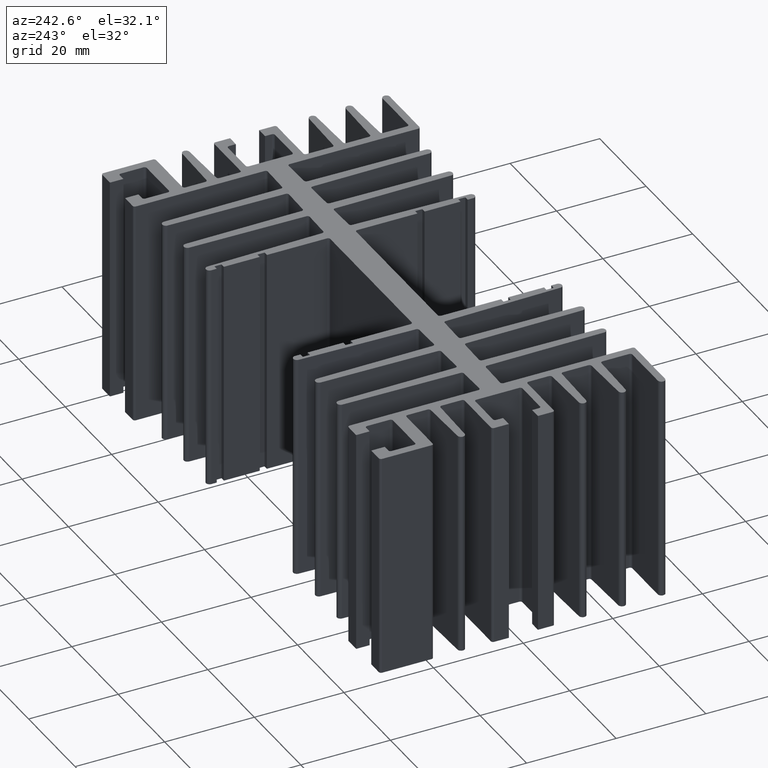
[diagram: clean part render]
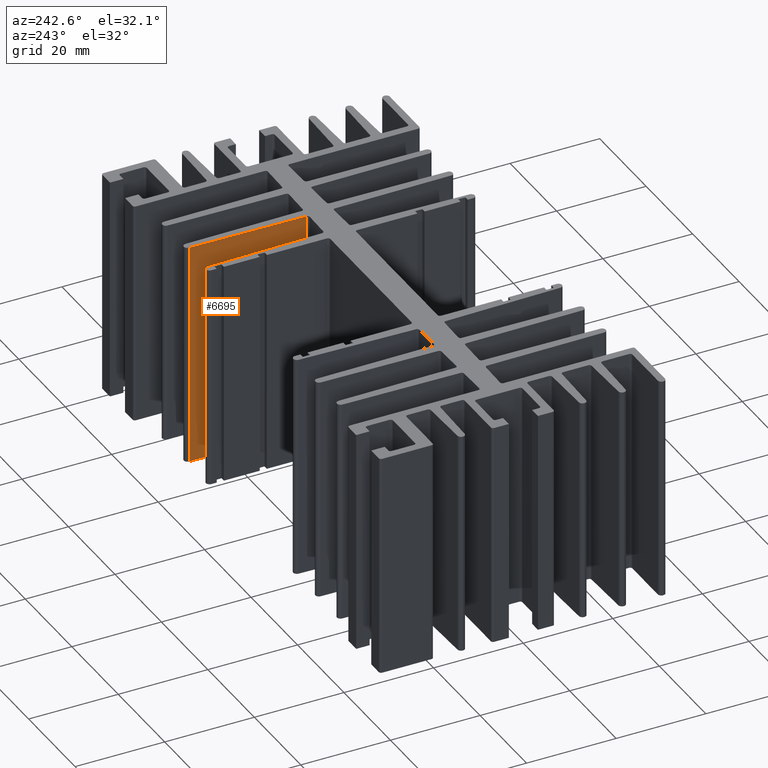
[diagram: same view with one face highlighted and labeled with its STEP entity id]
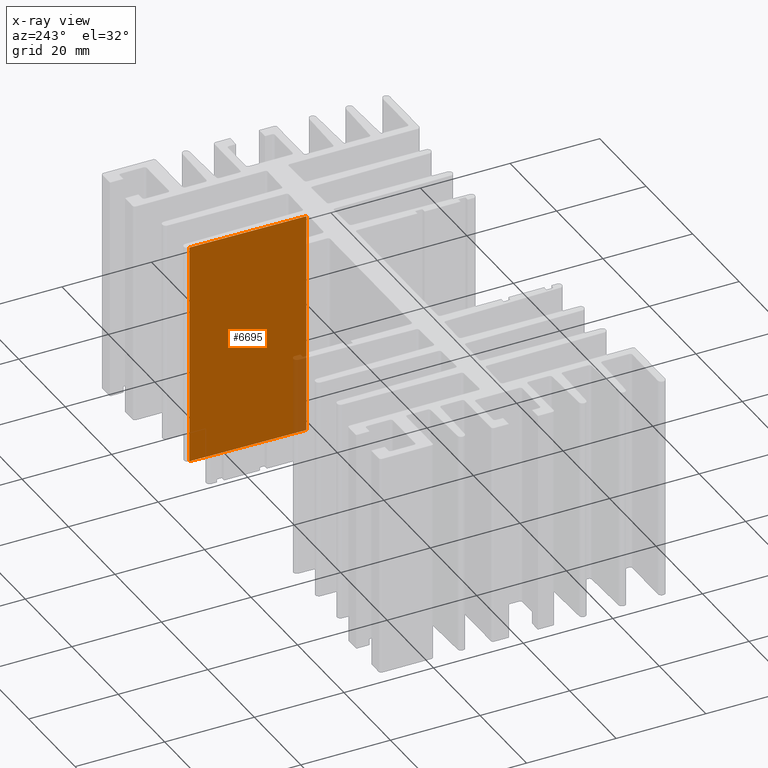
[diagram: x-ray of the same camera — body ghosted, the highlighted face saturated]
A machine part, auxiliary view. The second image highlights one B-rep face of the part: STEP entity #6695.
The next image is the same camera in x-ray: the body ghosted, the highlighted face saturated — about 4% of this face is hidden behind the body in this view.
In plain terms, the highlighted planar face has unit normal (0.9999, -0.0113, 0).
Its self-contained STEP definition (entity closure, byte-faithful):
#236 = EDGE_CURVE ( 'NONE', #6815, #2938, #5585, .T. ) ;
#375 = LINE ( 'NONE', #2944, #503 ) ;
#393 = DIRECTION ( 'NONE',  ( -0.01132113173198355700, -0.9999359139346416514, 0.0000000000000000000 ) ) ;
#503 = VECTOR ( 'NONE', #5510, 1000.000000000000114 ) ;
#587 = CARTESIAN_POINT ( 'NONE',  ( 27.20571508572690078, 3.183828925993155146, 50.00000000000000000 ) ) ;
#740 = VERTEX_POINT ( 'NONE', #3909 ) ;
#752 = CARTESIAN_POINT ( 'NONE',  ( 27.50005108572695178, 29.18097692599314641, 50.00000000000000000 ) ) ;
#1112 = ORIENTED_EDGE ( 'NONE', *, *, #6144, .F. ) ;
#2049 = CARTESIAN_POINT ( 'NONE',  ( 27.50005108572695178, 29.18097692599314641, 50.00000000000000000 ) ) ;
#2175 = VECTOR ( 'NONE', #393, 1000.000000000000114 ) ;
#2387 = DIRECTION ( 'NONE',  ( 0.0000000000000000000, 0.0000000000000000000, -1.000000000000000000 ) ) ;
#2711 = CARTESIAN_POINT ( 'NONE',  ( 27.20571508572694697, 3.183828925993155146, 0.0000000000000000000 ) ) ;
#2853 = ORIENTED_EDGE ( 'NONE', *, *, #4727, .T. ) ;
#2911 = VECTOR ( 'NONE', #2387, 1000.000000000000000 ) ;
#2938 = VERTEX_POINT ( 'NONE', #2711 ) ;
#2944 = CARTESIAN_POINT ( 'NONE',  ( 27.20571508572690078, 3.183828925993155146, 50.00000000000000000 ) ) ;
#3159 = DIRECTION ( 'NONE',  ( 0.9999359139346416514, -0.01132113173198355527, 0.0000000000000000000 ) ) ;
#3592 = LINE ( 'NONE', #6163, #2175 ) ;
#3790 = FACE_OUTER_BOUND ( 'NONE', #5286, .T. ) ;
#3909 = CARTESIAN_POINT ( 'NONE',  ( 27.50005108572695178, 29.18097692599314641, 0.0000000000000000000 ) ) ;
#4120 = VECTOR ( 'NONE', #4620, 1000.000000000000000 ) ;
#4125 = AXIS2_PLACEMENT_3D ( 'NONE', #587, #3159, #5733 ) ;
#4249 = ORIENTED_EDGE ( 'NONE', *, *, #4858, .T. ) ;
#4620 = DIRECTION ( 'NONE',  ( 0.0000000000000000000, 0.0000000000000000000, -1.000000000000000000 ) ) ;
#4727 = EDGE_CURVE ( 'NONE', #740, #2938, #3592, .T. ) ;
#4858 = EDGE_CURVE ( 'NONE', #7234, #740, #7828, .T. ) ;
#5286 = EDGE_LOOP ( 'NONE', ( #2853, #6591, #1112, #4249 ) ) ;
#5510 = DIRECTION ( 'NONE',  ( -0.01132113173198355700, -0.9999359139346416514, 0.0000000000000000000 ) ) ;
#5585 = LINE ( 'NONE', #8161, #2911 ) ;
#5733 = DIRECTION ( 'NONE',  ( 0.0000000000000000000, 0.0000000000000000000, -1.000000000000000000 ) ) ;
#6144 = EDGE_CURVE ( 'NONE', #7234, #6815, #375, .T. ) ;
#6163 = CARTESIAN_POINT ( 'NONE',  ( 27.20571508572690078, 3.183828925993155146, 0.0000000000000000000 ) ) ;
#6356 = PLANE ( 'NONE',  #4125 ) ;
#6575 = CARTESIAN_POINT ( 'NONE',  ( 27.20571508572694697, 3.183828925993155146, 50.00000000000000000 ) ) ;
#6591 = ORIENTED_EDGE ( 'NONE', *, *, #236, .F. ) ;
#6695 = ADVANCED_FACE ( 'NONE', ( #3790 ), #6356, .F. ) ;
#6815 = VERTEX_POINT ( 'NONE', #6575 ) ;
#7234 = VERTEX_POINT ( 'NONE', #752 ) ;
#7828 = LINE ( 'NONE', #2049, #4120 ) ;
#8161 = CARTESIAN_POINT ( 'NONE',  ( 27.20571508572694697, 3.183828925993155146, 50.00000000000000000 ) ) ;